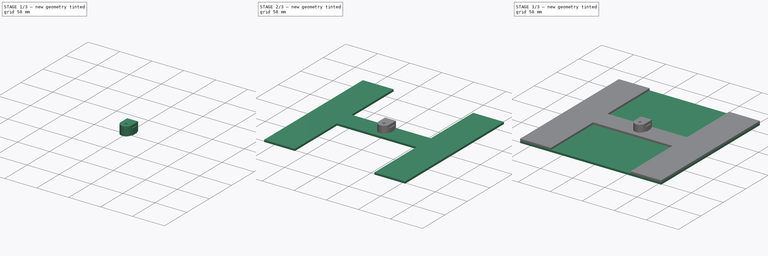
[diagram: build sequence overview — one tinted view per stage of 3, left to right]
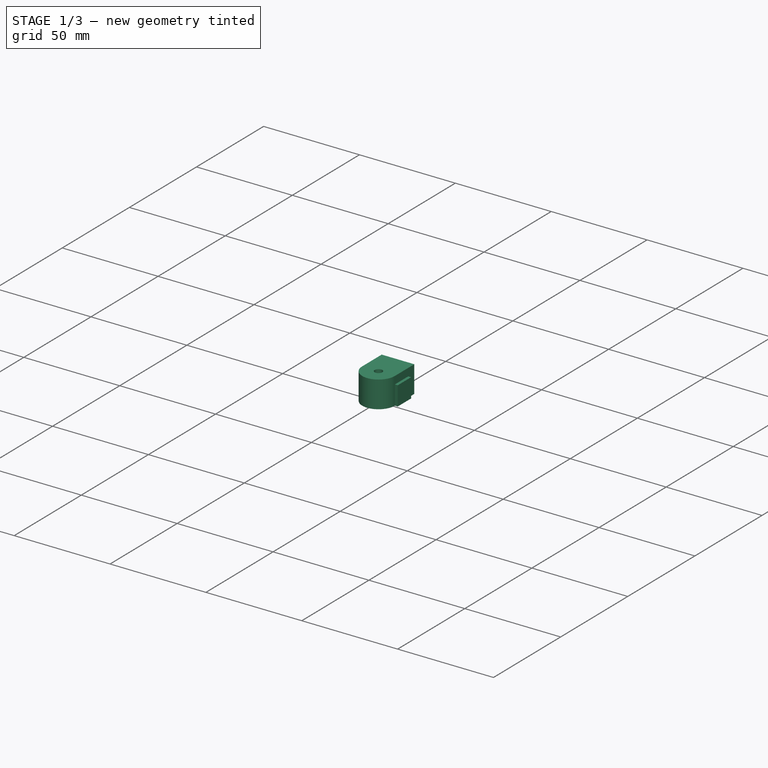
[diagram: stage 1 of 3 — iso view after this stage's code; geometry added in this stage tinted green]
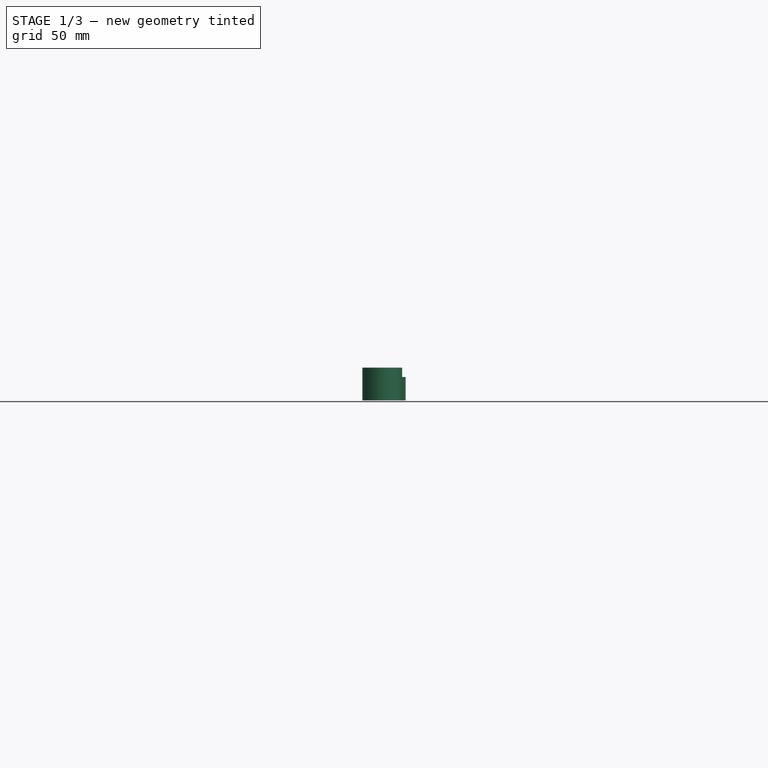
[diagram: stage 1 of 3 — front view after this stage's code; geometry added in this stage tinted green]
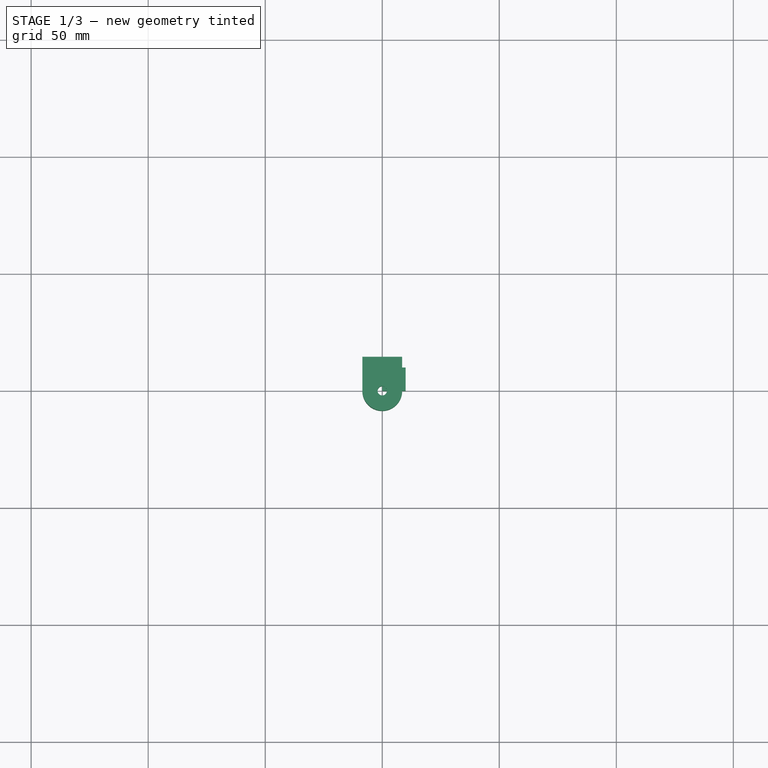
[diagram: stage 1 of 3 — top view after this stage's code; geometry added in this stage tinted green]
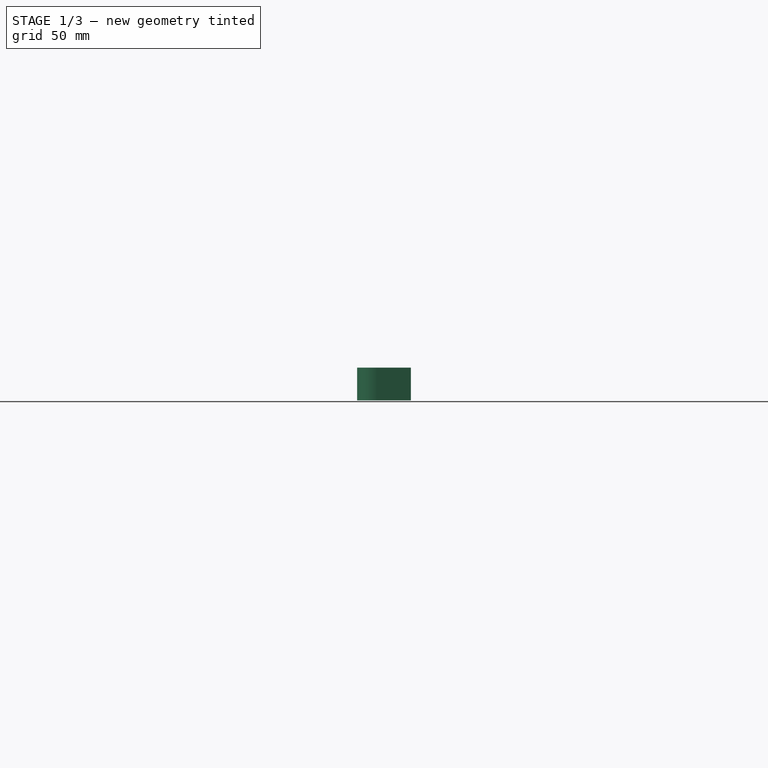
[diagram: stage 1 of 3 — right view after this stage's code; geometry added in this stage tinted green]
FCSTD DOCUMENT  (FreeCAD 0.18R16093 (Git))
Label: Anet_A6_platform
License: All rights reserved
LicenseURL: http://en.wikipedia.org/wiki/All_rights_reserved
objects: Sketcher::SketchObject×6, PartDesign::Pad×6, PartDesign::Body×6, Spreadsheet::Sheet×1, App::Part×1, Part::Box×1
note: 25 computed .brp shape members not serialized (recipe doc carries the construction recipe); baked Part::Feature solids carry a one-line shape summary decoded from their .brp

FEATURE [PartDesign::Body] Body002005006  label="Silicon002"
  Group = -> [Sketch008,Pad008]
  Origin = -> Origin009
  Placement = pos=(-105,105,-17) rot=(0,0,1;3.92699rad)
  Tip = -> Pad008
FEATURE [Sketcher::SketchObject] Sketch009
  MapMode = 5
  Support = -> [XY_Plane010]
  expr: Constraints[10] = Spreadsheet003.silicon_length - Spreadsheet.silicon_width / 2
  expr: Constraints[2] = Spreadsheet003.silicon_width / 2
  sketch-geometry (5):
    g0: ArcOfCircle CenterX=0 CenterY=2.1e-15 CenterZ=0 NormalX=0 NormalY=0 NormalZ=1 AngleXU=0 Radius=8.5 StartAngle=3.14159 EndAngle=6.28319
    g1: LineSegment StartX=-8.5 StartY=2.1e-15 StartZ=0 EndX=-8.5 EndY=14.5 EndZ=0
    g2: LineSegment StartX=-8.5 StartY=14.5 StartZ=0 EndX=8.5 EndY=14.5 EndZ=0
    g3: LineSegment StartX=8.5 StartY=14.5 StartZ=0 EndX=8.5 EndY=-1.8e-15 EndZ=0
    g4: Circle CenterX=0 CenterY=2.1e-15 CenterZ=0 NormalX=0 NormalY=0 NormalZ=1 AngleXU=0 Radius=2
  constraints (14):
    c: Coincident(g0,g-1)
    c: PointOnObject(g0,g-1)
    c: Radius(g0) = 8.5
    c: Coincident(g1,g0)
    c: Vertical(g1)
    c: Coincident(g2,g1)
    c: Horizontal(g2)
    c: Coincident(g3,g2)
    c: Coincident(g3,g0)
    c: Vertical(g3)
    c: DistanceY(g0,g1) = 14.5
    c: Coincident(g4,g0)
    c: Radius(g4) = 2
    c: Horizontal(g0,g0)
FEATURE [PartDesign::Pad] Pad009
  Length = 14
  Length2 = 100
  Profile = -> Sketch009
  Type = 0
  expr: Length = Spreadsheet003.silicon_height
FEATURE [PartDesign::Body] Body002005007  label="Silicon003"
  Group = -> [Sketch009,Pad009]
  Origin = -> Origin010
  Placement = pos=(-105,-105,-17) rot=(0,0,-1;0.610865rad)
  Tip = -> Pad009
FEATURE [App::Part] Part  label="Anet_A6_platform"
  Group = -> [Body,Spreadsheet,Body002,Body002004,Body002005005,Body002005006,Body002005007]
  Origin = -> Origin
FEATURE [Part::Box] Box  label="Cube"
  AttacherType = Attacher::AttachEngine3D
  Height = 10
  Length = 10
  Width = 10
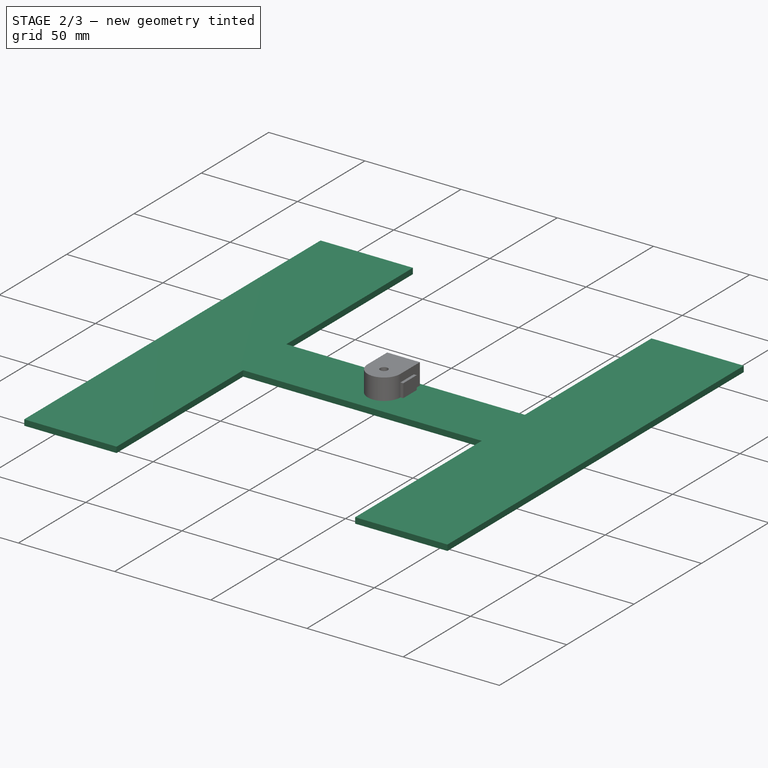
[diagram: stage 2 of 3 — iso view after this stage's code; geometry added in this stage tinted green]
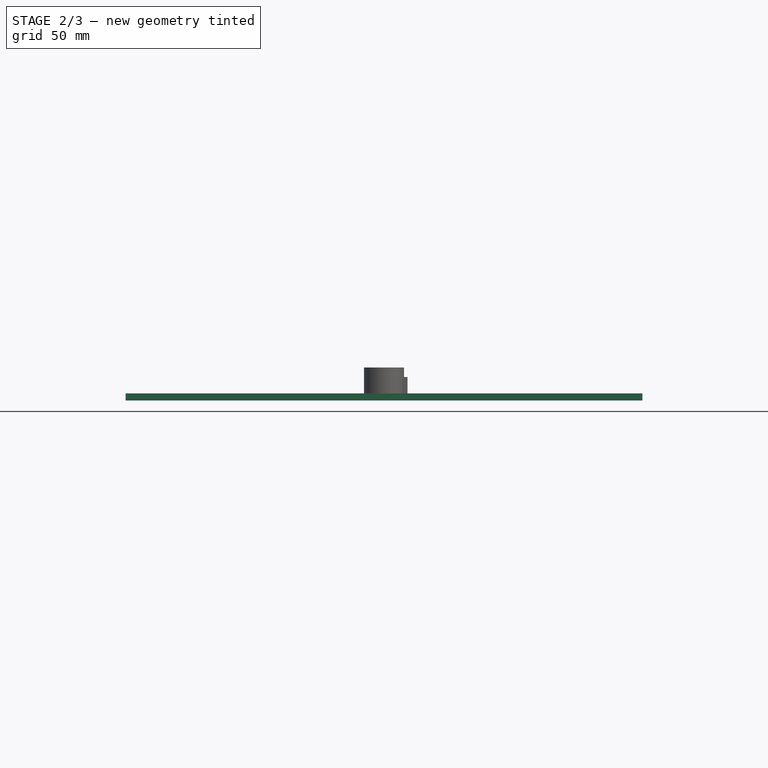
[diagram: stage 2 of 3 — front view after this stage's code; geometry added in this stage tinted green]
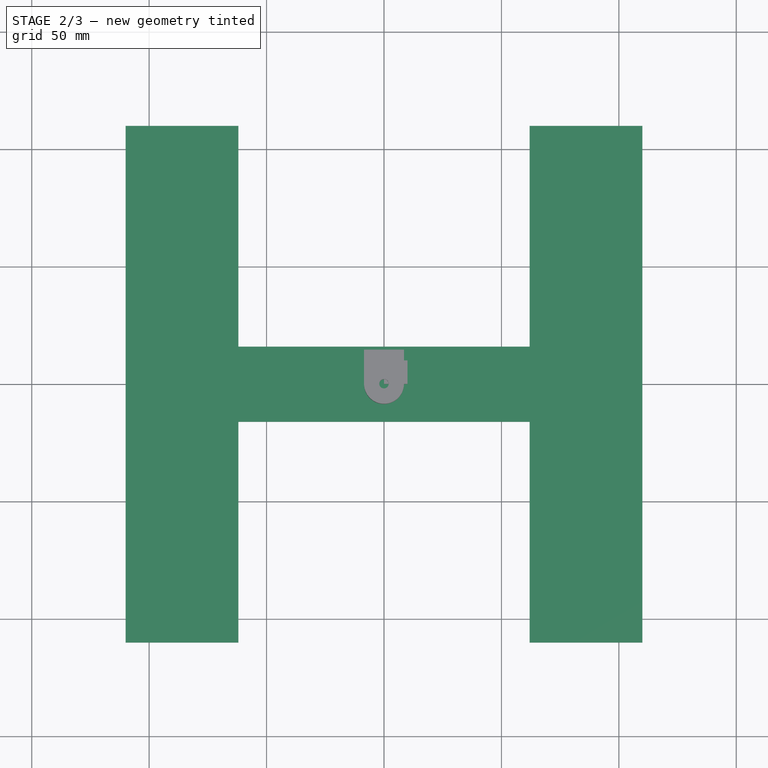
[diagram: stage 2 of 3 — top view after this stage's code; geometry added in this stage tinted green]
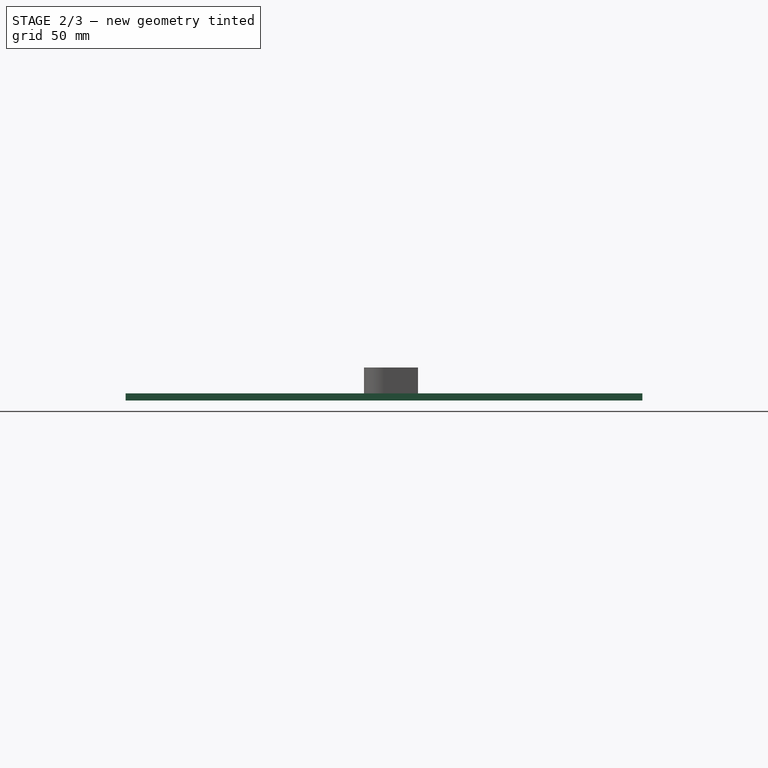
[diagram: stage 2 of 3 — right view after this stage's code; geometry added in this stage tinted green]
FEATURE [PartDesign::Body] Body002  label="Silicon"
  Group = -> [Sketch002,Pad002]
  Origin = -> Origin003
  Placement = pos=(105,-105,-17) rot=(0,0,1;0.785398rad)
  Tip = -> Pad002
FEATURE [Sketcher::SketchObject] Sketch003
  MapMode = 5
  Support = -> [XY_Plane004]
  expr: Constraints[28] = Spreadsheet.alu_plat_width
  expr: Constraints[29] = Spreadsheet.alu_plat_width / 2
  expr: Constraints[26] = Spreadsheet.alu_plat_height
  expr: Constraints[27] = Spreadsheet.alu_plat_height / 2
  sketch-geometry (12):
    g0: LineSegment StartX=-110 StartY=110 StartZ=0 EndX=-62 EndY=110 EndZ=0
    g1: LineSegment StartX=-62 StartY=110 StartZ=0 EndX=-62 EndY=16 EndZ=0
    g2: LineSegment StartX=-62 StartY=16 StartZ=0 EndX=62 EndY=16 EndZ=0
    g3: LineSegment StartX=62 StartY=16 StartZ=0 EndX=62 EndY=110 EndZ=0
    g4: LineSegment StartX=62 StartY=110 StartZ=0 EndX=110 EndY=110 EndZ=0
    g5: LineSegment StartX=110 StartY=110 StartZ=0 EndX=110 EndY=-110 EndZ=0
    g6: LineSegment StartX=110 StartY=-110 StartZ=0 EndX=62 EndY=-110 EndZ=0
    g7: LineSegment StartX=62 StartY=-110 StartZ=0 EndX=62 EndY=-16 EndZ=0
    g8: LineSegment StartX=62 StartY=-16 StartZ=0 EndX=-62 EndY=-16 EndZ=0
    g9: LineSegment StartX=-62 StartY=-16 StartZ=0 EndX=-62 EndY=-110 EndZ=0
    g10: LineSegment StartX=-62 StartY=-110 StartZ=0 EndX=-110 EndY=-110 EndZ=0
    g11: LineSegment StartX=-110 StartY=-110 StartZ=0 EndX=-110 EndY=110 EndZ=0
  constraints (36):
    c: Horizontal(g0)
    c: Coincident(g0,g1)
    c: Vertical(g1)
    c: Coincident(g1,g2)
    c: Horizontal(g2)
    c: Coincident(g2,g3)
    c: Vertical(g3)
    c: Coincident(g3,g4)
    c: Horizontal(g4)
    c: Coincident(g4,g5)
    c: Vertical(g5)
    c: Coincident(g5,g6)
    c: Horizontal(g6)
    c: Coincident(g6,g7)
    c: Vertical(g7)
    c: Coincident(g7,g8)
    c: Horizontal(g8)
    c: Coincident(g8,g9)
    c: Coincident(g9,g10)
    c: Coincident(g10,g11)
    c: Coincident(g11,g0)
    c: Vertical(g11)
    c: Vertical(g1,g8)
    c: Horizontal(g10,g9)
    c: Horizontal(g9,g6)
    c: Horizontal(g0,g4)
    c: DistanceY(g5,g4) = 220
    c: DistanceY(g5,g-1) = 110
    c: DistanceX(g10,g5) = 220
    c: DistanceX(g-1,g5) = 110
    c: Equal(g0,g4)
    c: Equal(g4,g6)
    c: Equal(g6,g10)
    c: DistanceX(g0,g0) = 48
    c: DistanceY(g1,g0) = 94
    c: DistanceY(g9,g8) = 94
FEATURE [PartDesign::Pad] Pad003
  Length = 3
  Length2 = 100
  Profile = -> Sketch003
  Type = 0
FEATURE [PartDesign::Body] Body002004  label="H_Plat"
  Group = -> [Sketch003,Pad003]
  Origin = -> Origin004
  Placement = pos=(0,0,-20) rot=(0,0,1;0rad)
  Tip = -> Pad003
FEATURE [Sketcher::SketchObject] Sketch007
  MapMode = 5
  Support = -> [XY_Plane008]
  expr: Constraints[10] = Spreadsheet.silicon_length - Spreadsheet.silicon_width / 2
  expr: Constraints[2] = Spreadsheet.silicon_width / 2
  sketch-geometry (5):
    g0: ArcOfCircle CenterX=0 CenterY=4.2e-15 CenterZ=0 NormalX=0 NormalY=0 NormalZ=1 AngleXU=0 Radius=8.5 StartAngle=3.14159 EndAngle=6.28319
    g1: LineSegment StartX=-8.5 StartY=4.2e-15 StartZ=0 EndX=-8.5 EndY=14.5 EndZ=0
    g2: LineSegment StartX=-8.5 StartY=14.5 StartZ=0 EndX=8.5 EndY=14.5 EndZ=0
    g3: LineSegment StartX=8.5 StartY=14.5 StartZ=0 EndX=8.5 EndY=1.8e-15 EndZ=0
    g4: Circle CenterX=0 CenterY=4.2e-15 CenterZ=0 NormalX=0 NormalY=0 NormalZ=1 AngleXU=0 Radius=2
  constraints (14):
    c: Coincident(g0,g-1)
    c: PointOnObject(g0,g-1)
    c: Radius(g0) = 8.5
    c: Coincident(g1,g0)
    c: Vertical(g1)
    c: Coincident(g2,g1)
    c: Horizontal(g2)
    c: Coincident(g3,g2)
    c: Coincident(g3,g0)
    c: Vertical(g3)
    c: DistanceY(g0,g1) = 14.5
    c: Coincident(g4,g0)
    c: Radius(g4) = 2
    c: Horizontal(g0,g0)
FEATURE [PartDesign::Pad] Pad007
  Length = 14
  Length2 = 100
  Profile = -> Sketch007
  Type = 0
  expr: Length = Spreadsheet.silicon_height
FEATURE [PartDesign::Body] Body002005005  label="Silicon001"
  Group = -> [Sketch007,Pad007]
  Origin = -> Origin008
  Placement = pos=(105,105,-17) rot=(0,0,1;2.35619rad)
  Tip = -> Pad007
FEATURE [Sketcher::SketchObject] Sketch008
  MapMode = 5
  Support = -> [XY_Plane009]
  expr: Constraints[10] = Spreadsheet002.silicon_length - Spreadsheet.silicon_width / 2
  expr: Constraints[2] = Spreadsheet002.silicon_width / 2
  sketch-geometry (5):
    g0: ArcOfCircle CenterX=0 CenterY=2.1e-15 CenterZ=0 NormalX=0 NormalY=0 NormalZ=1 AngleXU=0 Radius=8.5 StartAngle=3.14159 EndAngle=6.28319
    g1: LineSegment StartX=-8.5 StartY=2.1e-15 StartZ=0 EndX=-8.5 EndY=14.5 EndZ=0
    g2: LineSegment StartX=-8.5 StartY=14.5 StartZ=0 EndX=8.5 EndY=14.5 EndZ=0
    g3: LineSegment StartX=8.5 StartY=14.5 StartZ=0 EndX=8.5 EndY=-1.8e-15 EndZ=0
    g4: Circle CenterX=0 CenterY=2.1e-15 CenterZ=0 NormalX=0 NormalY=0 NormalZ=1 AngleXU=0 Radius=2
  constraints (14):
    c: Coincident(g0,g-1)
    c: PointOnObject(g0,g-1)
    c: Radius(g0) = 8.5
    c: Coincident(g1,g0)
    c: Vertical(g1)
    c: Coincident(g2,g1)
    c: Horizontal(g2)
    c: Coincident(g3,g2)
    c: Coincident(g3,g0)
    c: Vertical(g3)
    c: DistanceY(g0,g1) = 14.5
    c: Coincident(g4,g0)
    c: Radius(g4) = 2
    c: Horizontal(g0,g0)
FEATURE [PartDesign::Pad] Pad008
  Length = 14
  Length2 = 100
  Profile = -> Sketch008
  Type = 0
  expr: Length = Spreadsheet002.silicon_height
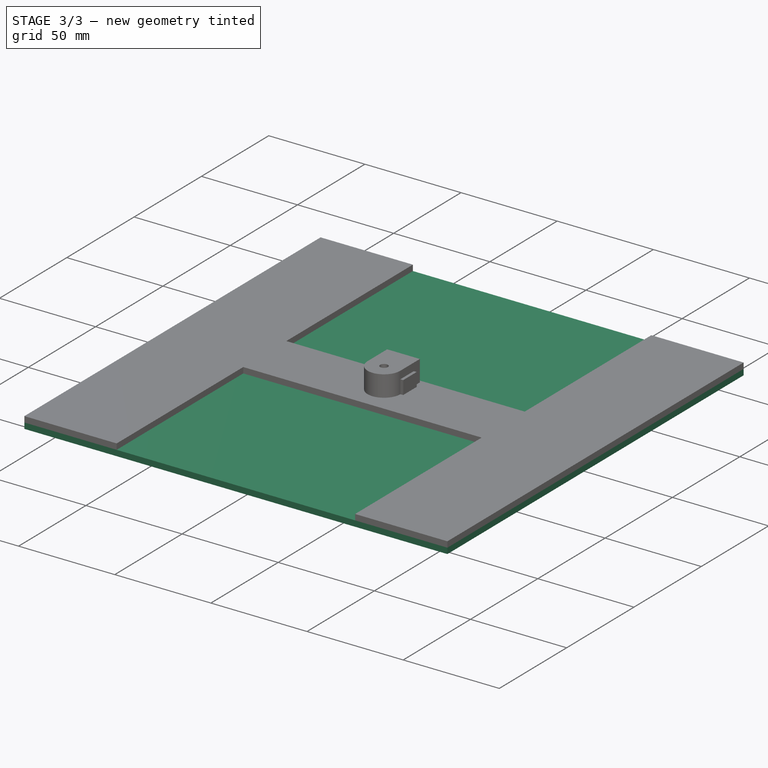
[diagram: stage 3 of 3 — iso view after this stage's code; geometry added in this stage tinted green]
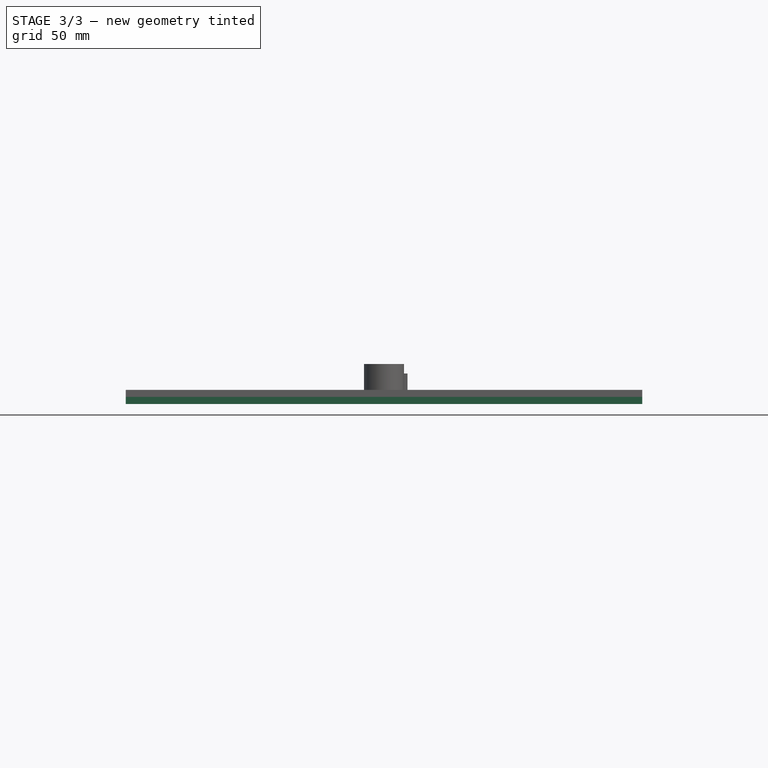
[diagram: stage 3 of 3 — front view after this stage's code; geometry added in this stage tinted green]
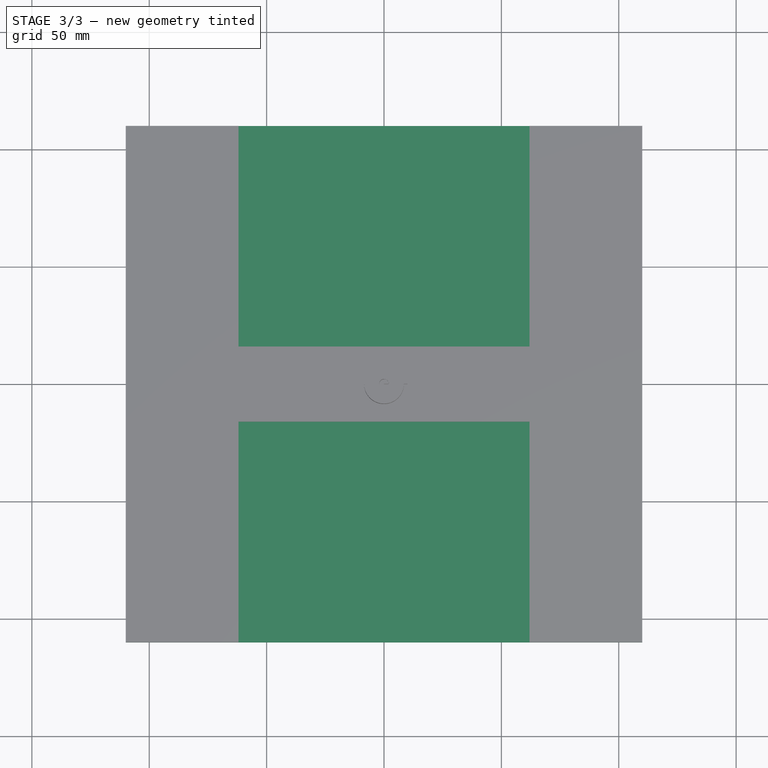
[diagram: stage 3 of 3 — top view after this stage's code; geometry added in this stage tinted green]
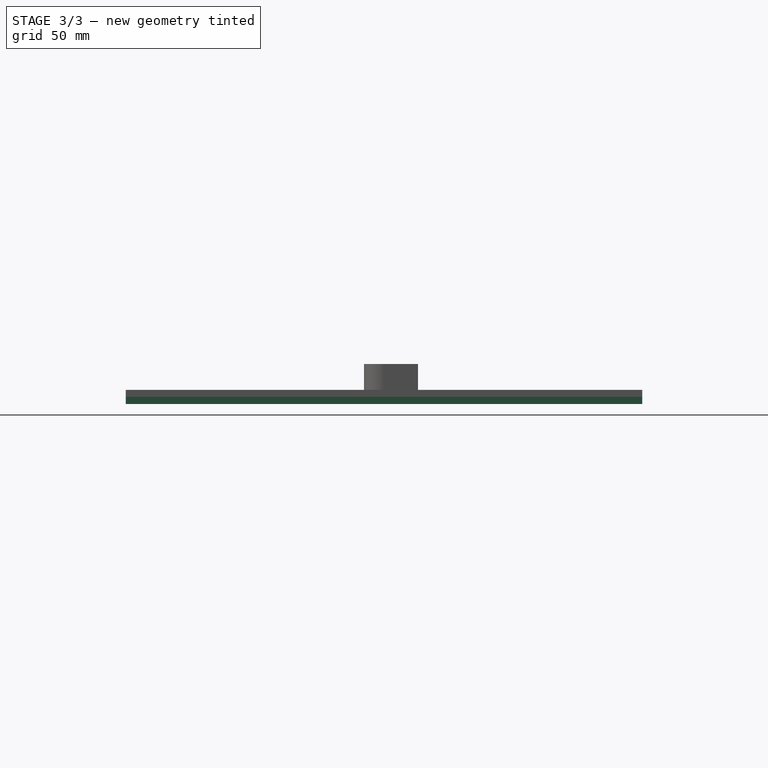
[diagram: stage 3 of 3 — right view after this stage's code; geometry added in this stage tinted green]
FEATURE [Sketcher::SketchObject] Sketch
  MapMode = 5
  Support = -> [XY_Plane001]
  expr: Constraints[11] = Spreadsheet.alu_plat_height / 2
  expr: Constraints[9] = Spreadsheet.alu_plat_height
  expr: Constraints[10] = Spreadsheet.alu_plat_width / 2
  expr: Constraints[8] = Spreadsheet.alu_plat_width
  sketch-geometry (4):
    g0: LineSegment StartX=-110 StartY=110 StartZ=0 EndX=110 EndY=110 EndZ=0
    g1: LineSegment StartX=110 StartY=110 StartZ=0 EndX=110 EndY=-110 EndZ=0
    g2: LineSegment StartX=110 StartY=-110 StartZ=0 EndX=-110 EndY=-110 EndZ=0
    g3: LineSegment StartX=-110 StartY=-110 StartZ=0 EndX=-110 EndY=110 EndZ=0
  constraints (12):
    c: Coincident(g0,g1)
    c: Coincident(g1,g2)
    c: Coincident(g2,g3)
    c: Coincident(g3,g0)
    c: Horizontal(g0)
    c: Horizontal(g2)
    c: Vertical(g1)
    c: Vertical(g3)
    c: DistanceX(g2,g1) = 220
    c: DistanceY(g2,g0) = 220
    c: DistanceX(g-1,g0) = 110
    c: DistanceY(g-1,g0) = 110
FEATURE [PartDesign::Pad] Pad
  Length = 3
  Length2 = 100
  Profile = -> Sketch
  Reversed = true
  Type = 0
  expr: Length = Spreadsheet.alu_plat_thickness
FEATURE [PartDesign::Body] Body  label="Alu_plat"
  Group = -> [Sketch,Pad]
  Origin = -> Origin001
  Tip = -> Pad
FEATURE [Spreadsheet::Sheet] Spreadsheet
  cells = A2=Alu Plat; B2=width; C2(alu_plat_width)=220; E2=alu_plat_width; G2=Build size： 220*220*240mm; B3=height; C3(alu_plat_height)=220; B4=thickness; C4(alu_plat_thickness)=3; A5=Glas plat; B5=width; C5(glas_plat_width)=200; B6=height; C6(glas_plat_height)=213; B7=thickness; C7(glas_plat_thickness)=3; B8=offset_x; C8(glas_plat_offset_x)=-3; B9=offset_y; C9(glas_plat_offset_y)=0; A10=Silicon; B10=width; C10(silicon_width)=17; B11=length; C11(silicon_length)=23; B12=thickness; C12(silicon_height)=14
FEATURE [Sketcher::SketchObject] Sketch002
  MapMode = 5
  Support = -> [XY_Plane003]
  expr: Constraints[10] = Spreadsheet.silicon_length - Spreadsheet.silicon_width / 2
  expr: Constraints[2] = Spreadsheet.silicon_width / 2
  sketch-geometry (5):
    g0: ArcOfCircle CenterX=0 CenterY=2.1e-15 CenterZ=0 NormalX=0 NormalY=0 NormalZ=1 AngleXU=0 Radius=8.5 StartAngle=3.14159 EndAngle=6.28319
    g1: LineSegment StartX=-8.5 StartY=2.1e-15 StartZ=0 EndX=-8.5 EndY=14.5 EndZ=0
    g2: LineSegment StartX=-8.5 StartY=14.5 StartZ=0 EndX=8.5 EndY=14.5 EndZ=0
    g3: LineSegment StartX=8.5 StartY=14.5 StartZ=0 EndX=8.5 EndY=-1.8e-15 EndZ=0
    g4: Circle CenterX=0 CenterY=2.1e-15 CenterZ=0 NormalX=0 NormalY=0 NormalZ=1 AngleXU=0 Radius=2
  constraints (14):
    c: Coincident(g0,g-1)
    c: PointOnObject(g0,g-1)
    c: Radius(g0) = 8.5
    c: Coincident(g1,g0)
    c: Vertical(g1)
    c: Coincident(g2,g1)
    c: Horizontal(g2)
    c: Coincident(g3,g2)
    c: Coincident(g3,g0)
    c: Vertical(g3)
    c: DistanceY(g0,g1) = 14.5
    c: Coincident(g4,g0)
    c: Radius(g4) = 2
    c: Horizontal(g0,g0)
FEATURE [PartDesign::Pad] Pad002
  Length = 14
  Length2 = 100
  Profile = -> Sketch002
  Type = 0
  expr: Length = Spreadsheet.silicon_height
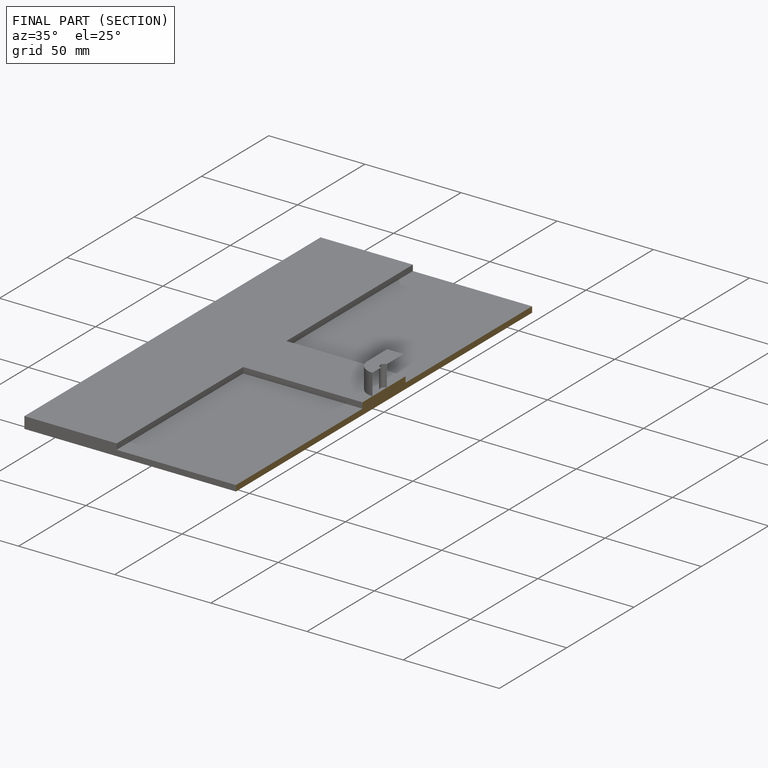
[diagram: finished part — half-section view (interior)]
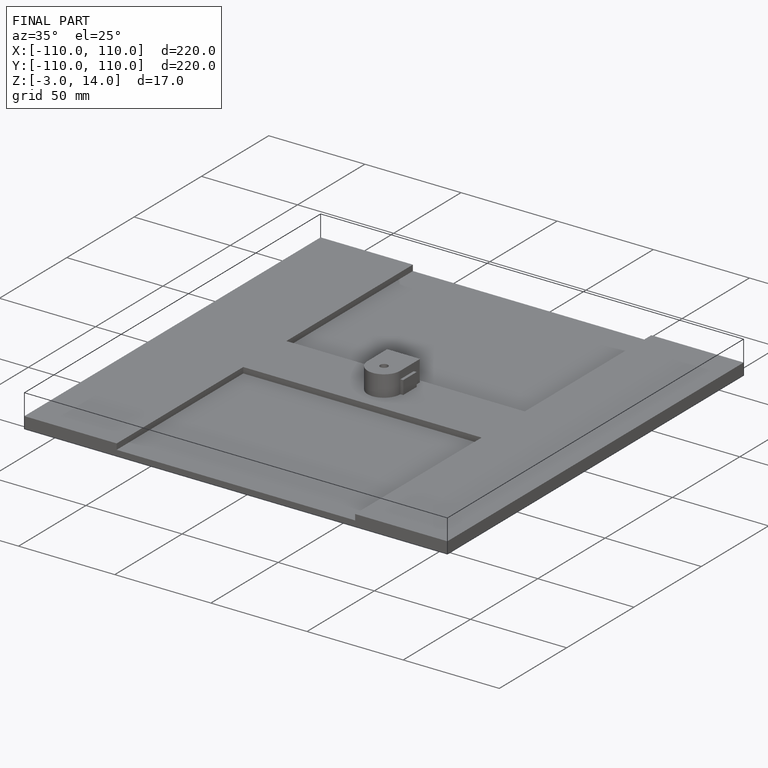
[diagram: finished part — iso view with bounding-box wireframe]
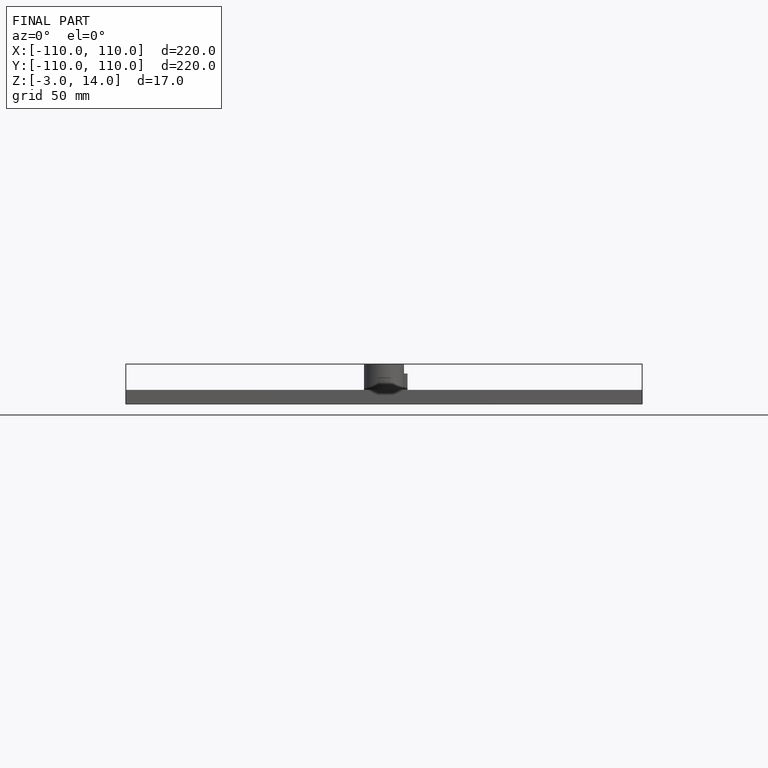
[diagram: finished part — front view with bounding-box wireframe]
